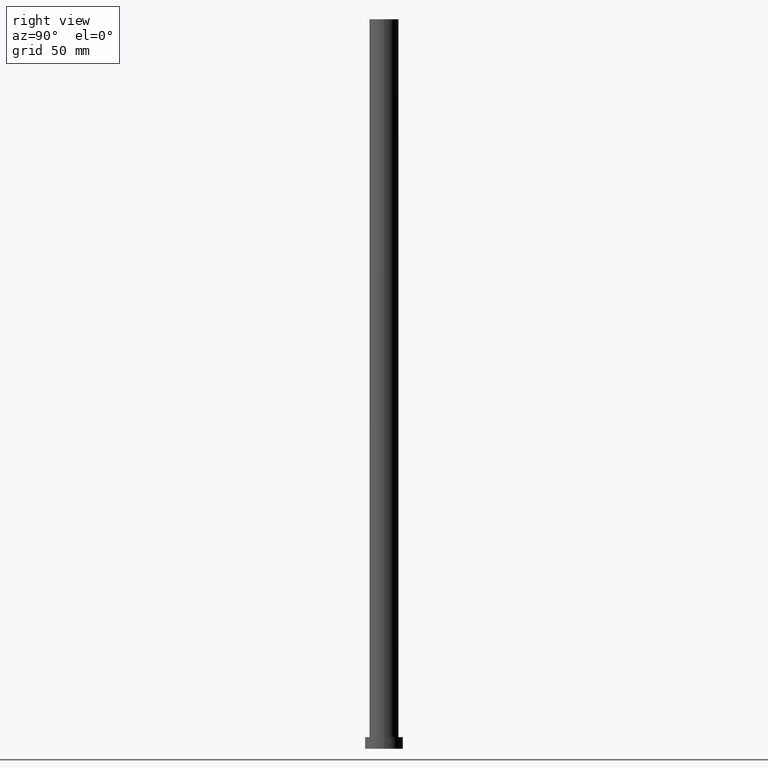
[diagram: clean part render]
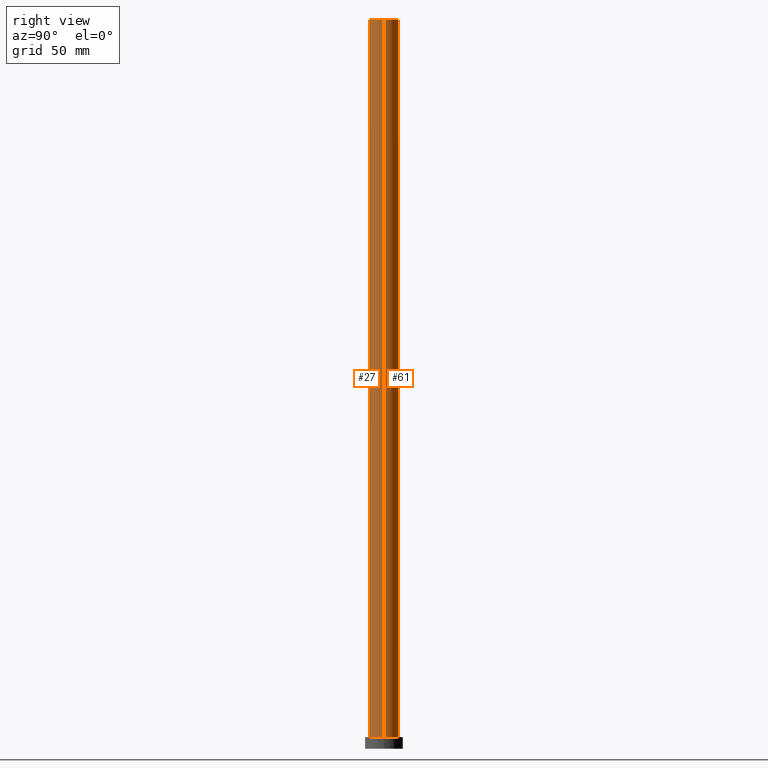
[diagram: same view with one multi-face feature highlighted, each face labeled with its STEP entity id]
A machine part, right view. The highlighted faces form ONE feature: a constant-radius fillet chain: 2 tangent blend faces with common blend radius 10 mm. The faces share edges in the B-rep.
Their STEP definitions:
[1] entity #61 (Cylinder):
#14 = DIRECTION ( 'NONE',  ( -1.000000000000000000, 0.000000000000000000, 0.000000000000000000 ) ) ;
#21 = CARTESIAN_POINT ( 'NONE',  ( 10.00000000000000000, 1.224646799147353256E-15, 8.000000000000000000 ) ) ;
#33 = AXIS2_PLACEMENT_3D ( 'NONE', #67, #234, #119 ) ;
#34 = ORIENTED_EDGE ( 'NONE', *, *, #106, .F. ) ;
#45 = CARTESIAN_POINT ( 'NONE',  ( -10.00000000000000000, 0.000000000000000000, 500.0000000000000000 ) ) ;
#46 = CARTESIAN_POINT ( 'NONE',  ( 0.000000000000000000, 0.000000000000000000, 500.0000000000000000 ) ) ;
#51 = VECTOR ( 'NONE', #97, 1000.000000000000000 ) ;
#61 = ADVANCED_FACE ( 'NONE', ( #203 ), #187, .T. ) ;
#62 = VERTEX_POINT ( 'NONE', #94 ) ;
#64 = ORIENTED_EDGE ( 'NONE', *, *, #239, .F. ) ;
#66 = DIRECTION ( 'NONE',  ( 0.000000000000000000, 0.000000000000000000, 1.000000000000000000 ) ) ;
#67 = CARTESIAN_POINT ( 'NONE',  ( 0.000000000000000000, 0.000000000000000000, 8.000000000000000000 ) ) ;
#74 = CARTESIAN_POINT ( 'NONE',  ( 0.000000000000000000, 0.000000000000000000, 500.0000000000000000 ) ) ;
#77 = LINE ( 'NONE', #129, #93 ) ;
#93 = VECTOR ( 'NONE', #108, 1000.000000000000000 ) ;
#94 = CARTESIAN_POINT ( 'NONE',  ( -10.00000000000000000, 0.000000000000000000, 8.000000000000000000 ) ) ;
#95 = VERTEX_POINT ( 'NONE', #208 ) ;
#97 = DIRECTION ( 'NONE',  ( -0.000000000000000000, -0.000000000000000000, -1.000000000000000000 ) ) ;
#105 = CIRCLE ( 'NONE', #183, 10.00000000000000000 ) ;
#106 = EDGE_CURVE ( 'NONE', #116, #62, #77, .T. ) ;
#108 = DIRECTION ( 'NONE',  ( -0.000000000000000000, -0.000000000000000000, -1.000000000000000000 ) ) ;
#112 = CIRCLE ( 'NONE', #33, 10.00000000000000000 ) ;
#116 = VERTEX_POINT ( 'NONE', #45 ) ;
#117 = VERTEX_POINT ( 'NONE', #21 ) ;
#119 = DIRECTION ( 'NONE',  ( 1.000000000000000000, 0.000000000000000000, 0.000000000000000000 ) ) ;
#122 = EDGE_CURVE ( 'NONE', #95, #117, #158, .T. ) ;
#129 = CARTESIAN_POINT ( 'NONE',  ( -10.00000000000000000, 0.000000000000000000, 500.0000000000000000 ) ) ;
#136 = ORIENTED_EDGE ( 'NONE', *, *, #122, .T. ) ;
#158 = LINE ( 'NONE', #219, #51 ) ;
#161 = DIRECTION ( 'NONE',  ( 1.000000000000000000, 0.000000000000000000, 0.000000000000000000 ) ) ;
#170 = ORIENTED_EDGE ( 'NONE', *, *, #174, .T. ) ;
#174 = EDGE_CURVE ( 'NONE', #117, #62, #112, .T. ) ;
#183 = AXIS2_PLACEMENT_3D ( 'NONE', #46, #66, #161 ) ;
#187 = CYLINDRICAL_SURFACE ( 'NONE', #233, 10.00000000000000000 ) ;
#203 = FACE_OUTER_BOUND ( 'NONE', #249, .T. ) ;
#208 = CARTESIAN_POINT ( 'NONE',  ( 10.00000000000000000, 1.224646799147353256E-15, 500.0000000000000000 ) ) ;
#219 = CARTESIAN_POINT ( 'NONE',  ( 10.00000000000000000, 1.224646799147353256E-15, 500.0000000000000000 ) ) ;
#233 = AXIS2_PLACEMENT_3D ( 'NONE', #74, #245, #14 ) ;
#234 = DIRECTION ( 'NONE',  ( 0.000000000000000000, 0.000000000000000000, 1.000000000000000000 ) ) ;
#239 = EDGE_CURVE ( 'NONE', #95, #116, #105, .T. ) ;
#245 = DIRECTION ( 'NONE',  ( -0.000000000000000000, -0.000000000000000000, -1.000000000000000000 ) ) ;
#249 = EDGE_LOOP ( 'NONE', ( #64, #136, #170, #34 ) ) ;
[2] entity #27 (Cylinder):
#21 = CARTESIAN_POINT ( 'NONE',  ( 10.00000000000000000, 1.224646799147353256E-15, 8.000000000000000000 ) ) ;
#27 = ADVANCED_FACE ( 'NONE', ( #35 ), #166, .T. ) ;
#35 = FACE_OUTER_BOUND ( 'NONE', #192, .T. ) ;
#38 = CARTESIAN_POINT ( 'NONE',  ( 0.000000000000000000, 0.000000000000000000, 500.0000000000000000 ) ) ;
#45 = CARTESIAN_POINT ( 'NONE',  ( -10.00000000000000000, 0.000000000000000000, 500.0000000000000000 ) ) ;
#48 = DIRECTION ( 'NONE',  ( 1.000000000000000000, 0.000000000000000000, 0.000000000000000000 ) ) ;
#51 = VECTOR ( 'NONE', #97, 1000.000000000000000 ) ;
#62 = VERTEX_POINT ( 'NONE', #94 ) ;
#77 = LINE ( 'NONE', #129, #93 ) ;
#78 = ORIENTED_EDGE ( 'NONE', *, *, #106, .T. ) ;
#79 = AXIS2_PLACEMENT_3D ( 'NONE', #142, #103, #48 ) ;
#93 = VECTOR ( 'NONE', #108, 1000.000000000000000 ) ;
#94 = CARTESIAN_POINT ( 'NONE',  ( -10.00000000000000000, 0.000000000000000000, 8.000000000000000000 ) ) ;
#95 = VERTEX_POINT ( 'NONE', #208 ) ;
#97 = DIRECTION ( 'NONE',  ( -0.000000000000000000, -0.000000000000000000, -1.000000000000000000 ) ) ;
#102 = AXIS2_PLACEMENT_3D ( 'NONE', #38, #172, #226 ) ;
#103 = DIRECTION ( 'NONE',  ( 0.000000000000000000, 0.000000000000000000, 1.000000000000000000 ) ) ;
#106 = EDGE_CURVE ( 'NONE', #116, #62, #77, .T. ) ;
#108 = DIRECTION ( 'NONE',  ( -0.000000000000000000, -0.000000000000000000, -1.000000000000000000 ) ) ;
#109 = EDGE_CURVE ( 'NONE', #62, #117, #252, .T. ) ;
#116 = VERTEX_POINT ( 'NONE', #45 ) ;
#117 = VERTEX_POINT ( 'NONE', #21 ) ;
#122 = EDGE_CURVE ( 'NONE', #95, #117, #158, .T. ) ;
#128 = CIRCLE ( 'NONE', #79, 10.00000000000000000 ) ;
#129 = CARTESIAN_POINT ( 'NONE',  ( -10.00000000000000000, 0.000000000000000000, 500.0000000000000000 ) ) ;
#132 = ORIENTED_EDGE ( 'NONE', *, *, #122, .F. ) ;
#142 = CARTESIAN_POINT ( 'NONE',  ( 0.000000000000000000, 0.000000000000000000, 500.0000000000000000 ) ) ;
#155 = CARTESIAN_POINT ( 'NONE',  ( 0.000000000000000000, 0.000000000000000000, 8.000000000000000000 ) ) ;
#156 = AXIS2_PLACEMENT_3D ( 'NONE', #155, #184, #193 ) ;
#158 = LINE ( 'NONE', #219, #51 ) ;
#166 = CYLINDRICAL_SURFACE ( 'NONE', #102, 10.00000000000000000 ) ;
#172 = DIRECTION ( 'NONE',  ( -0.000000000000000000, -0.000000000000000000, -1.000000000000000000 ) ) ;
#184 = DIRECTION ( 'NONE',  ( 0.000000000000000000, 0.000000000000000000, 1.000000000000000000 ) ) ;
#185 = ORIENTED_EDGE ( 'NONE', *, *, #109, .T. ) ;
#192 = EDGE_LOOP ( 'NONE', ( #132, #211, #78, #185 ) ) ;
#193 = DIRECTION ( 'NONE',  ( 1.000000000000000000, 0.000000000000000000, 0.000000000000000000 ) ) ;
#208 = CARTESIAN_POINT ( 'NONE',  ( 10.00000000000000000, 1.224646799147353256E-15, 500.0000000000000000 ) ) ;
#211 = ORIENTED_EDGE ( 'NONE', *, *, #242, .F. ) ;
#219 = CARTESIAN_POINT ( 'NONE',  ( 10.00000000000000000, 1.224646799147353256E-15, 500.0000000000000000 ) ) ;
#226 = DIRECTION ( 'NONE',  ( -1.000000000000000000, 0.000000000000000000, 0.000000000000000000 ) ) ;
#242 = EDGE_CURVE ( 'NONE', #116, #95, #128, .T. ) ;
#252 = CIRCLE ( 'NONE', #156, 10.00000000000000000 ) ;